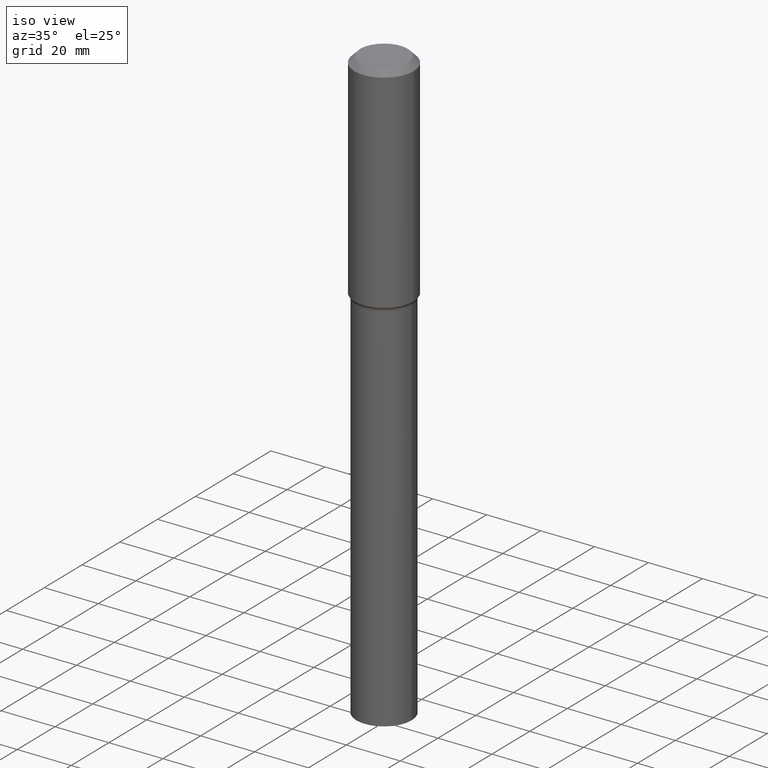
[diagram: clean part render]
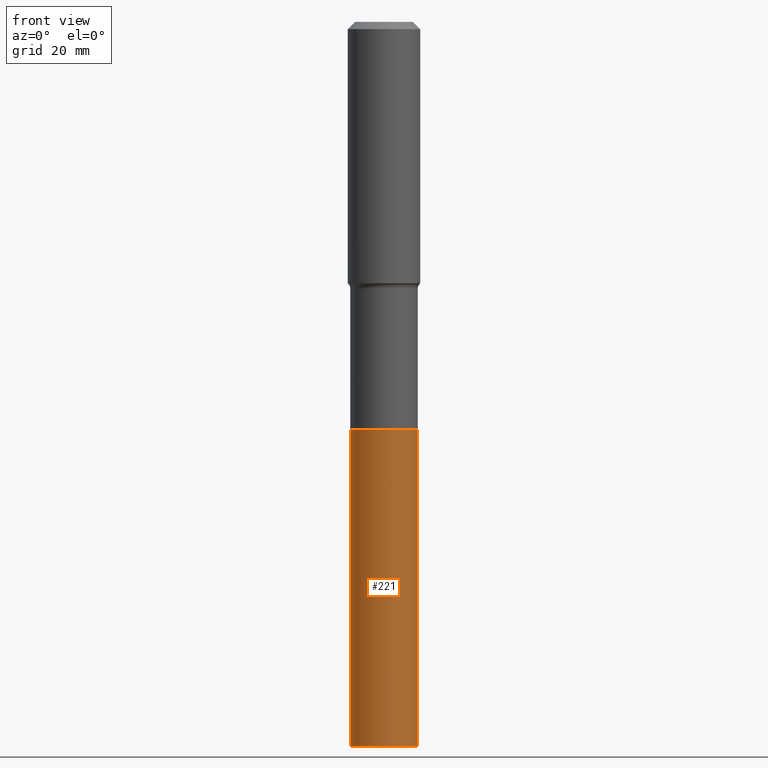
[diagram: tour spotlight — one face highlighted and labeled with its STEP entity id]
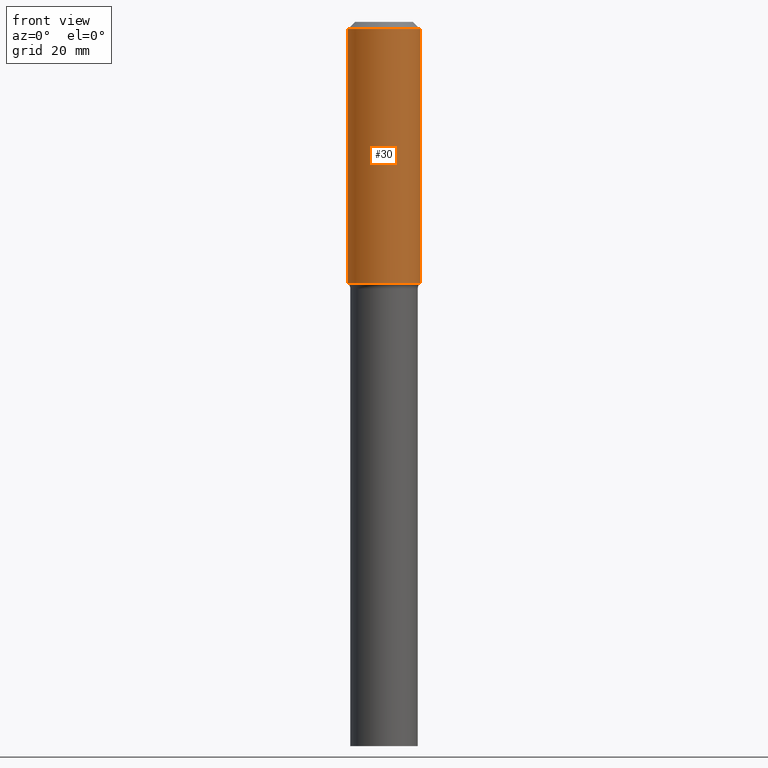
[diagram: tour spotlight — one face highlighted and labeled with its STEP entity id]
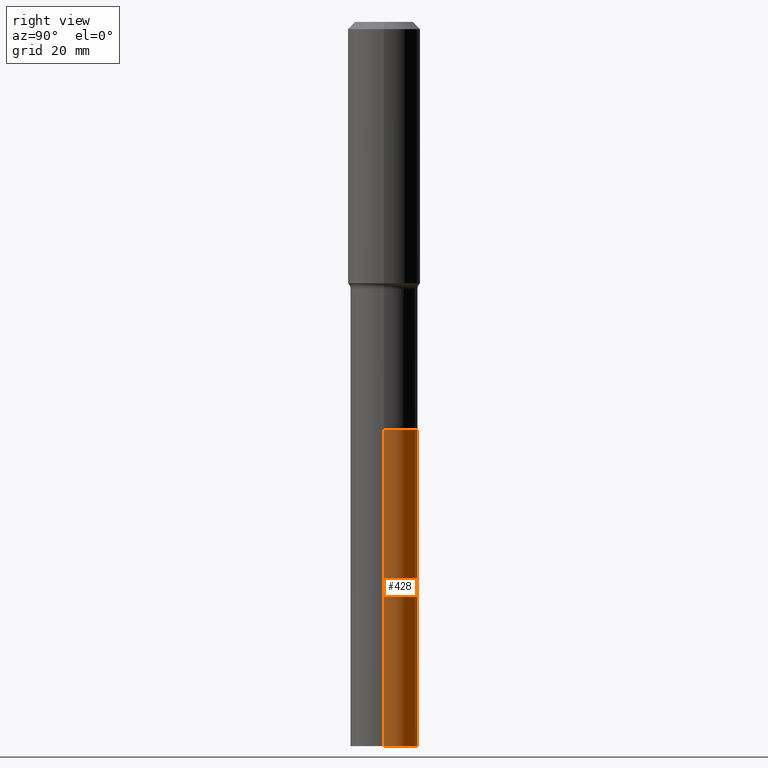
[diagram: tour spotlight — one face highlighted and labeled with its STEP entity id]
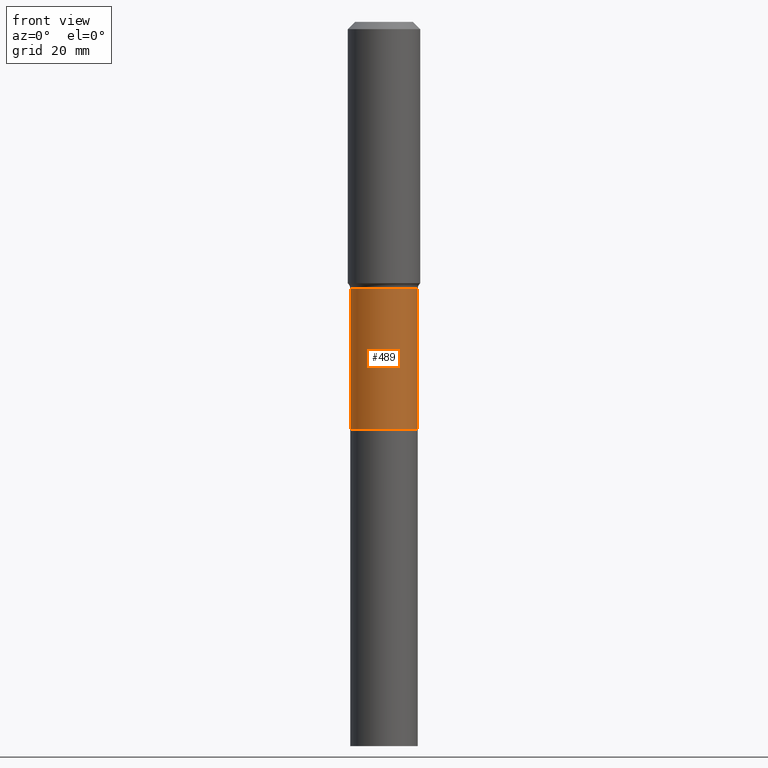
[diagram: tour spotlight — one face highlighted and labeled with its STEP entity id]
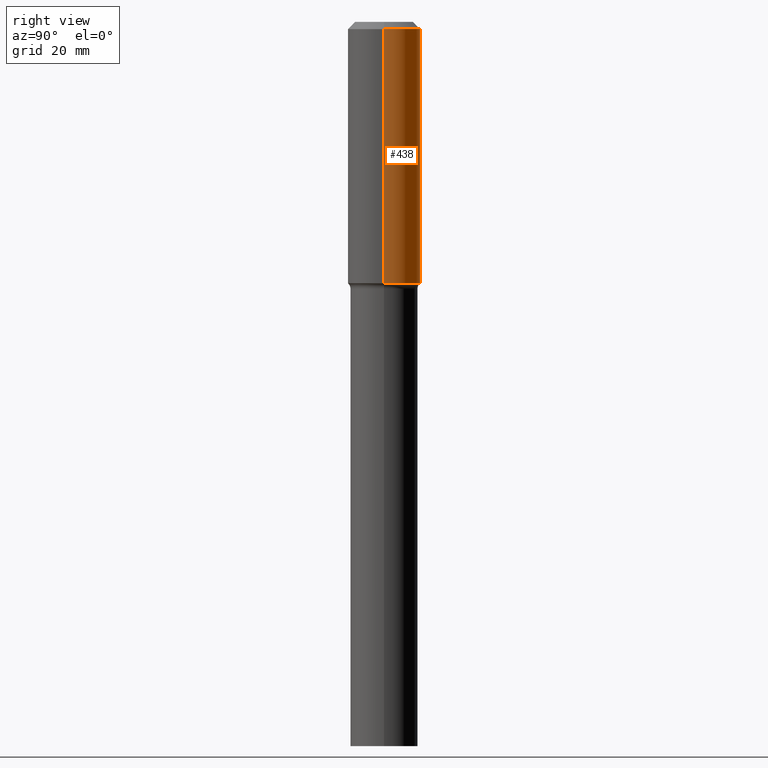
[diagram: tour spotlight — one face highlighted and labeled with its STEP entity id]
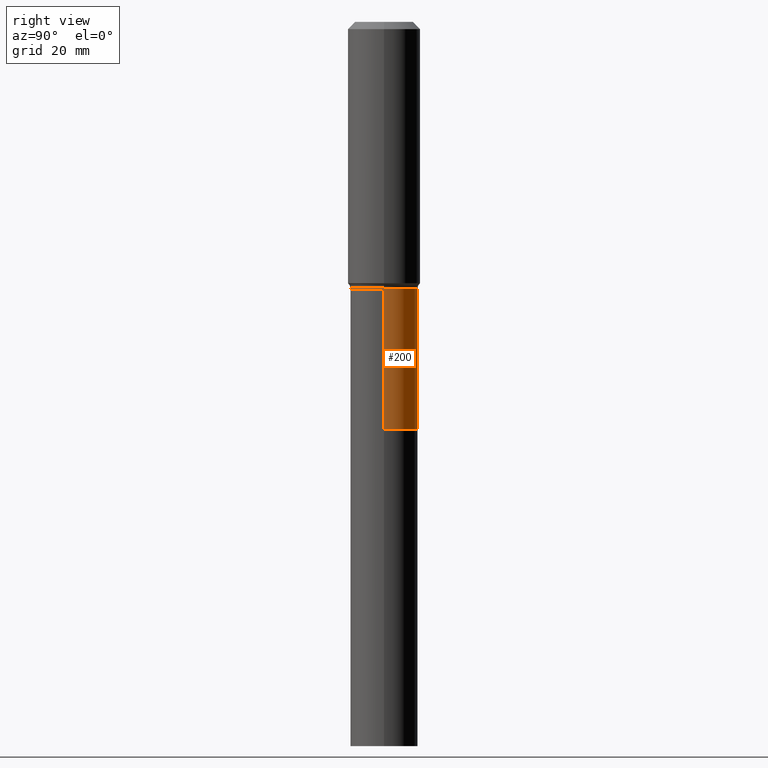
[diagram: tour spotlight — one face highlighted and labeled with its STEP entity id]
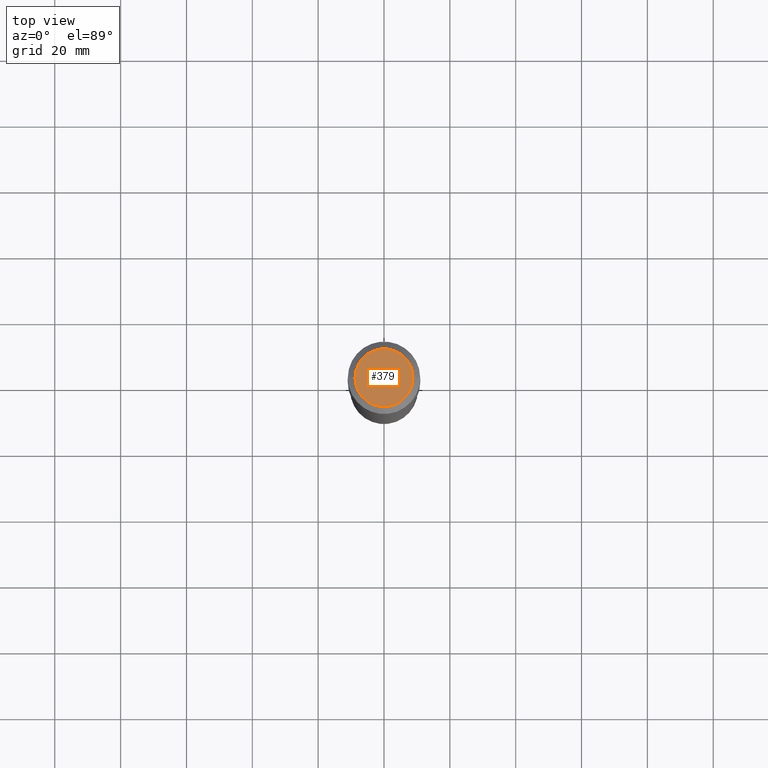
[diagram: tour spotlight — one face highlighted and labeled with its STEP entity id]
A machine part: a face-by-face anatomy tour. The part has 18 B-rep faces; the first image is the clean iso view, then the 7 largest visible faces are spotlighted one at a time (largest first), each with its STEP entity span.

Face 1 — front view, entity #221. In plain terms, the highlighted cylindrical surface (edge-blend (fillet) strip) has radius 10.2502 mm, axis along (-0, 0, 1).
Definition (entity closure, byte-faithful):
#12 = CARTESIAN_POINT ( 'NONE',  ( 0.4035499999999999643, -1.982986826395963764E-14, -4.872400000000000730 ) ) ;
#13 = CARTESIAN_POINT ( 'NONE',  ( -0.4035499999999999643, -2.075910986165779812E-14, -8.661400000000000432 ) ) ;
#23 = LINE ( 'NONE', #348, #120 ) ;
#49 = DIRECTION ( 'NONE',  ( -2.445468806185136597E-29, 3.491481338843145583E-15, 1.000000000000000000 ) ) ;
#96 = CARTESIAN_POINT ( 'NONE',  ( -0.4035499999999999643, -2.075910986165779812E-14, -4.872400000000000730 ) ) ;
#101 = DIRECTION ( 'NONE',  ( 1.000000000000000000, -6.982962677686270655E-15, 0.000000000000000000 ) ) ;
#102 = CARTESIAN_POINT ( 'NONE',  ( 0.4035499999999999643, -3.305909105683631707E-14, -8.661400000000000432 ) ) ;
#105 = DIRECTION ( 'NONE',  ( 1.000000000000000000, -6.982962677686270655E-15, 0.000000000000000000 ) ) ;
#110 = ORIENTED_EDGE ( 'NONE', *, *, #218, .T. ) ;
#120 = VECTOR ( 'NONE', #151, 39.37007874015748143 ) ;
#133 = DIRECTION ( 'NONE',  ( -2.445468806185136597E-29, 3.491481338843145583E-15, 1.000000000000000000 ) ) ;
#135 = CYLINDRICAL_SURFACE ( 'NONE', #327, 0.4035499999999999643 ) ;
#143 = DIRECTION ( 'NONE',  ( -2.445468806185136877E-29, 3.491481338843145188E-15, 1.000000000000000000 ) ) ;
#148 = CARTESIAN_POINT ( 'NONE',  ( 1.191530221125646148E-28, -1.701189367537934324E-14, -4.872400000000000730 ) ) ;
#151 = DIRECTION ( 'NONE',  ( -2.445468806185136877E-29, 3.491481338843145188E-15, 1.000000000000000000 ) ) ;
#158 = EDGE_CURVE ( 'NONE', #198, #279, #331, .T. ) ;
#170 = AXIS2_PLACEMENT_3D ( 'NONE', #410, #49, #101 ) ;
#176 = CIRCLE ( 'NONE', #170, 0.4035499999999999643 ) ;
#178 = FACE_OUTER_BOUND ( 'NONE', #343, .T. ) ;
#198 = VERTEX_POINT ( 'NONE', #102 ) ;
#206 = ORIENTED_EDGE ( 'NONE', *, *, #287, .F. ) ;
#215 = ORIENTED_EDGE ( 'NONE', *, *, #158, .T. ) ;
#218 = EDGE_CURVE ( 'NONE', #451, #198, #426, .T. ) ;
#221 = ADVANCED_FACE ( 'NONE', ( #178 ), #135, .T. ) ;
#268 = DIRECTION ( 'NONE',  ( 1.000000000000000000, -6.982962677686270655E-15, 0.000000000000000000 ) ) ;
#279 = VERTEX_POINT ( 'NONE', #361 ) ;
#283 = VECTOR ( 'NONE', #143, 39.37007874015748143 ) ;
#287 = EDGE_CURVE ( 'NONE', #451, #482, #23, .T. ) ;
#306 = ORIENTED_EDGE ( 'NONE', *, *, #457, .F. ) ;
#327 = AXIS2_PLACEMENT_3D ( 'NONE', #148, #133, #268 ) ;
#331 = LINE ( 'NONE', #12, #283 ) ;
#343 = EDGE_LOOP ( 'NONE', ( #206, #110, #215, #306 ) ) ;
#348 = CARTESIAN_POINT ( 'NONE',  ( -0.4035499999999999643, -1.414449846521945998E-14, -4.872400000000000730 ) ) ;
#361 = CARTESIAN_POINT ( 'NONE',  ( 0.4035499999999999643, -1.982986826395963764E-14, -4.872400000000000730 ) ) ;
#410 = CARTESIAN_POINT ( 'NONE',  ( 1.191530221125646148E-28, -1.701189367537934324E-14, -4.872400000000000730 ) ) ;
#415 = CARTESIAN_POINT ( 'NONE',  ( 2.118118351789194654E-28, -3.024111646825602582E-14, -8.661400000000000432 ) ) ;
#426 = CIRCLE ( 'NONE', #491, 0.4035499999999999643 ) ;
#451 = VERTEX_POINT ( 'NONE', #13 ) ;
#457 = EDGE_CURVE ( 'NONE', #482, #279, #176, .T. ) ;
#465 = DIRECTION ( 'NONE',  ( -2.445468806185136597E-29, 3.491481338843145583E-15, 1.000000000000000000 ) ) ;
#482 = VERTEX_POINT ( 'NONE', #96 ) ;
#491 = AXIS2_PLACEMENT_3D ( 'NONE', #415, #465, #105 ) ;

Face 2 — front view, entity #30. In plain terms, the highlighted cylindrical surface (edge-blend (fillet) strip) has radius 10.9995 mm, axis along (-0, 0, 1).
Definition (entity closure, byte-faithful):
#30 = ADVANCED_FACE ( 'NONE', ( #144 ), #136, .T. ) ;
#34 = VERTEX_POINT ( 'NONE', #230 ) ;
#35 = DIRECTION ( 'NONE',  ( -2.445468806185136877E-29, 3.491481338843145188E-15, 1.000000000000000000 ) ) ;
#45 = ORIENTED_EDGE ( 'NONE', *, *, #274, .F. ) ;
#57 = DIRECTION ( 'NONE',  ( -2.445468806185136597E-29, 3.491481338843145583E-15, 1.000000000000000000 ) ) ;
#69 = CARTESIAN_POINT ( 'NONE',  ( 0.000000000000000000, 0.000000000000000000, 0.000000000000000000 ) ) ;
#87 = CIRCLE ( 'NONE', #304, 0.4330500000000000460 ) ;
#130 = EDGE_CURVE ( 'NONE', #34, #282, #87, .T. ) ;
#134 = DIRECTION ( 'NONE',  ( -2.445468806185136877E-29, 3.491481338843145188E-15, 1.000000000000000000 ) ) ;
#136 = CYLINDRICAL_SURFACE ( 'NONE', #204, 0.4330500000000001570 ) ;
#142 = CARTESIAN_POINT ( 'NONE',  ( 0.4330500000000003791, -1.393922350118300844E-14, -3.126252285005076015 ) ) ;
#144 = FACE_OUTER_BOUND ( 'NONE', #272, .T. ) ;
#190 = CARTESIAN_POINT ( 'NONE',  ( -0.4330500000000001570, 3.077005317209114971E-15, -2.130144840834887965E-29 ) ) ;
#193 = CIRCLE ( 'NONE', #244, 0.4330500000000003791 ) ;
#204 = AXIS2_PLACEMENT_3D ( 'NONE', #69, #57, #466 ) ;
#217 = VECTOR ( 'NONE', #134, 39.37007874015748143 ) ;
#220 = CARTESIAN_POINT ( 'NONE',  ( 7.645152443244918339E-29, -1.091525151361096715E-14, -3.126252285005076015 ) ) ;
#229 = LINE ( 'NONE', #190, #486 ) ;
#230 = CARTESIAN_POINT ( 'NONE',  ( -0.4330500000000000460, -2.531819038974971065E-15, -0.08661000000000053378 ) ) ;
#244 = AXIS2_PLACEMENT_3D ( 'NONE', #220, #460, #425 ) ;
#249 = EDGE_CURVE ( 'NONE', #312, #413, #193, .T. ) ;
#262 = CARTESIAN_POINT ( 'NONE',  ( 2.118020533036960046E-30, -3.023971987572066927E-16, -0.08661000000000053378 ) ) ;
#272 = EDGE_LOOP ( 'NONE', ( #45, #392, #406, #397 ) ) ;
#274 = EDGE_CURVE ( 'NONE', #312, #34, #229, .T. ) ;
#277 = CARTESIAN_POINT ( 'NONE',  ( -0.4330500000000003791, -7.838246196401849028E-15, -3.126252285005076015 ) ) ;
#282 = VERTEX_POINT ( 'NONE', #311 ) ;
#304 = AXIS2_PLACEMENT_3D ( 'NONE', #262, #502, #494 ) ;
#311 = CARTESIAN_POINT ( 'NONE',  ( 0.4330500000000000460, -3.326369186329244629E-15, -0.08661000000000053378 ) ) ;
#312 = VERTEX_POINT ( 'NONE', #277 ) ;
#381 = CARTESIAN_POINT ( 'NONE',  ( 0.4330500000000001570, -3.023971987572038922E-15, 2.111628352758430875E-29 ) ) ;
#392 = ORIENTED_EDGE ( 'NONE', *, *, #249, .T. ) ;
#397 = ORIENTED_EDGE ( 'NONE', *, *, #130, .F. ) ;
#406 = ORIENTED_EDGE ( 'NONE', *, *, #476, .T. ) ;
#413 = VERTEX_POINT ( 'NONE', #142 ) ;
#425 = DIRECTION ( 'NONE',  ( 1.000000000000000000, -6.982962677686265133E-15, 0.000000000000000000 ) ) ;
#460 = DIRECTION ( 'NONE',  ( -2.445468806185136597E-29, 3.491481338843145583E-15, 1.000000000000000000 ) ) ;
#466 = DIRECTION ( 'NONE',  ( 1.000000000000000000, -6.982962677686266711E-15, 4.876176775795935793E-29 ) ) ;
#476 = EDGE_CURVE ( 'NONE', #413, #282, #495, .T. ) ;
#486 = VECTOR ( 'NONE', #35, 39.37007874015748143 ) ;
#494 = DIRECTION ( 'NONE',  ( 1.000000000000000000, -6.982962677686266711E-15, 0.000000000000000000 ) ) ;
#495 = LINE ( 'NONE', #381, #217 ) ;
#502 = DIRECTION ( 'NONE',  ( -2.445468806185136597E-29, 3.491481338843145583E-15, 1.000000000000000000 ) ) ;

Face 3 — right view, entity #428. In plain terms, the highlighted cylindrical surface (edge-blend (fillet) strip) has radius 10.2502 mm, axis along (-0, 0, 1).
Definition (entity closure, byte-faithful):
#12 = CARTESIAN_POINT ( 'NONE',  ( 0.4035499999999999643, -1.982986826395963764E-14, -4.872400000000000730 ) ) ;
#13 = CARTESIAN_POINT ( 'NONE',  ( -0.4035499999999999643, -2.075910986165779812E-14, -8.661400000000000432 ) ) ;
#23 = LINE ( 'NONE', #348, #120 ) ;
#27 = CIRCLE ( 'NONE', #128, 0.4035499999999999643 ) ;
#41 = ORIENTED_EDGE ( 'NONE', *, *, #287, .T. ) ;
#77 = DIRECTION ( 'NONE',  ( 1.000000000000000000, -6.982962677686270655E-15, 0.000000000000000000 ) ) ;
#82 = ORIENTED_EDGE ( 'NONE', *, *, #292, .F. ) ;
#96 = CARTESIAN_POINT ( 'NONE',  ( -0.4035499999999999643, -2.075910986165779812E-14, -4.872400000000000730 ) ) ;
#97 = CIRCLE ( 'NONE', #298, 0.4035499999999999643 ) ;
#102 = CARTESIAN_POINT ( 'NONE',  ( 0.4035499999999999643, -3.305909105683631707E-14, -8.661400000000000432 ) ) ;
#120 = VECTOR ( 'NONE', #151, 39.37007874015748143 ) ;
#128 = AXIS2_PLACEMENT_3D ( 'NONE', #473, #508, #77 ) ;
#132 = FACE_OUTER_BOUND ( 'NONE', #500, .T. ) ;
#143 = DIRECTION ( 'NONE',  ( -2.445468806185136877E-29, 3.491481338843145188E-15, 1.000000000000000000 ) ) ;
#151 = DIRECTION ( 'NONE',  ( -2.445468806185136877E-29, 3.491481338843145188E-15, 1.000000000000000000 ) ) ;
#158 = EDGE_CURVE ( 'NONE', #198, #279, #331, .T. ) ;
#198 = VERTEX_POINT ( 'NONE', #102 ) ;
#222 = DIRECTION ( 'NONE',  ( 1.000000000000000000, -6.982962677686270655E-15, 0.000000000000000000 ) ) ;
#239 = ORIENTED_EDGE ( 'NONE', *, *, #158, .F. ) ;
#257 = CARTESIAN_POINT ( 'NONE',  ( 1.191530221125646148E-28, -1.701189367537934324E-14, -4.872400000000000730 ) ) ;
#264 = AXIS2_PLACEMENT_3D ( 'NONE', #257, #291, #377 ) ;
#279 = VERTEX_POINT ( 'NONE', #361 ) ;
#283 = VECTOR ( 'NONE', #143, 39.37007874015748143 ) ;
#287 = EDGE_CURVE ( 'NONE', #451, #482, #23, .T. ) ;
#291 = DIRECTION ( 'NONE',  ( -2.445468806185136597E-29, 3.491481338843145583E-15, 1.000000000000000000 ) ) ;
#292 = EDGE_CURVE ( 'NONE', #279, #482, #27, .T. ) ;
#295 = CARTESIAN_POINT ( 'NONE',  ( 2.118118351789194654E-28, -3.024111646825602582E-14, -8.661400000000000432 ) ) ;
#298 = AXIS2_PLACEMENT_3D ( 'NONE', #295, #340, #222 ) ;
#319 = ORIENTED_EDGE ( 'NONE', *, *, #369, .T. ) ;
#331 = LINE ( 'NONE', #12, #283 ) ;
#340 = DIRECTION ( 'NONE',  ( -2.445468806185136597E-29, 3.491481338843145583E-15, 1.000000000000000000 ) ) ;
#348 = CARTESIAN_POINT ( 'NONE',  ( -0.4035499999999999643, -1.414449846521945998E-14, -4.872400000000000730 ) ) ;
#361 = CARTESIAN_POINT ( 'NONE',  ( 0.4035499999999999643, -1.982986826395963764E-14, -4.872400000000000730 ) ) ;
#369 = EDGE_CURVE ( 'NONE', #198, #451, #97, .T. ) ;
#377 = DIRECTION ( 'NONE',  ( 1.000000000000000000, -6.982962677686270655E-15, 0.000000000000000000 ) ) ;
#385 = CYLINDRICAL_SURFACE ( 'NONE', #264, 0.4035499999999999643 ) ;
#428 = ADVANCED_FACE ( 'NONE', ( #132 ), #385, .T. ) ;
#451 = VERTEX_POINT ( 'NONE', #13 ) ;
#473 = CARTESIAN_POINT ( 'NONE',  ( 1.191530221125646148E-28, -1.701189367537934324E-14, -4.872400000000000730 ) ) ;
#482 = VERTEX_POINT ( 'NONE', #96 ) ;
#500 = EDGE_LOOP ( 'NONE', ( #319, #41, #82, #239 ) ) ;
#508 = DIRECTION ( 'NONE',  ( -2.445468806185136597E-29, 3.491481338843145583E-15, 1.000000000000000000 ) ) ;

Face 4 — front view, entity #489. In plain terms, the highlighted cylindrical surface (edge-blend (fillet) strip) has radius 10.2502 mm, axis along (-0, 0, 1).
Definition (entity closure, byte-faithful):
#21 = ORIENTED_EDGE ( 'NONE', *, *, #512, .T. ) ;
#32 = ORIENTED_EDGE ( 'NONE', *, *, #117, .F. ) ;
#109 = DIRECTION ( 'NONE',  ( -2.445468806185136597E-29, 3.491481338843145583E-15, 1.000000000000000000 ) ) ;
#117 = EDGE_CURVE ( 'NONE', #362, #510, #383, .T. ) ;
#127 = AXIS2_PLACEMENT_3D ( 'NONE', #376, #418, #302 ) ;
#140 = CARTESIAN_POINT ( 'NONE',  ( 7.799578210446876445E-29, -1.113573058210633188E-14, -3.189400000000000901 ) ) ;
#145 = CARTESIAN_POINT ( 'NONE',  ( 0.000000000000000000, 0.000000000000000000, 0.000000000000000000 ) ) ;
#150 = AXIS2_PLACEMENT_3D ( 'NONE', #140, #386, #422 ) ;
#164 = EDGE_LOOP ( 'NONE', ( #363, #167, #21, #32 ) ) ;
#167 = ORIENTED_EDGE ( 'NONE', *, *, #208, .T. ) ;
#174 = CARTESIAN_POINT ( 'NONE',  ( -0.4035499999999997978, -1.120554404824824237E-14, -3.189400000000000901 ) ) ;
#196 = DIRECTION ( 'NONE',  ( -2.445468806185136877E-29, 3.491481338843145188E-15, 1.000000000000000000 ) ) ;
#208 = EDGE_CURVE ( 'NONE', #286, #475, #359, .T. ) ;
#219 = CARTESIAN_POINT ( 'NONE',  ( 0.4035499999999999643, -1.982812252329021220E-14, -4.871900000000000119 ) ) ;
#228 = DIRECTION ( 'NONE',  ( -2.445468806185136877E-29, 3.491481338843145188E-15, 1.000000000000000000 ) ) ;
#240 = DIRECTION ( 'NONE',  ( 1.000000000000000000, -6.982962677686265922E-15, 4.876176775795935232E-29 ) ) ;
#271 = CARTESIAN_POINT ( 'NONE',  ( 0.4035499999999997978, -1.395370517068662471E-14, -3.189400000000000901 ) ) ;
#286 = VERTEX_POINT ( 'NONE', #389 ) ;
#302 = DIRECTION ( 'NONE',  ( 1.000000000000000000, -6.982962677686265922E-15, 0.000000000000000000 ) ) ;
#305 = FACE_OUTER_BOUND ( 'NONE', #164, .T. ) ;
#315 = AXIS2_PLACEMENT_3D ( 'NONE', #145, #109, #240 ) ;
#328 = VECTOR ( 'NONE', #228, 39.37007874015748143 ) ;
#344 = CARTESIAN_POINT ( 'NONE',  ( 0.4035499999999998533, -2.817974588580291640E-15, 1.967781137872449025E-29 ) ) ;
#349 = EDGE_CURVE ( 'NONE', #286, #362, #501, .T. ) ;
#359 = CIRCLE ( 'NONE', #127, 0.4035499999999999643 ) ;
#360 = VECTOR ( 'NONE', #196, 39.37007874015748143 ) ;
#362 = VERTEX_POINT ( 'NONE', #174 ) ;
#363 = ORIENTED_EDGE ( 'NONE', *, *, #349, .F. ) ;
#370 = CARTESIAN_POINT ( 'NONE',  ( -0.4035499999999998533, 2.867395210159883258E-15, -1.985036255672366672E-29 ) ) ;
#376 = CARTESIAN_POINT ( 'NONE',  ( 1.191407947685336644E-28, -1.701014793470992095E-14, -4.871900000000000119 ) ) ;
#383 = CIRCLE ( 'NONE', #150, 0.4035499999999997978 ) ;
#386 = DIRECTION ( 'NONE',  ( -2.445468806185136597E-29, 3.491481338843145583E-15, 1.000000000000000000 ) ) ;
#389 = CARTESIAN_POINT ( 'NONE',  ( -0.4035500000000000753, -1.120554404824823921E-14, -4.871900000000000119 ) ) ;
#390 = LINE ( 'NONE', #344, #360 ) ;
#418 = DIRECTION ( 'NONE',  ( -2.445468806185136597E-29, 3.491481338843145583E-15, 1.000000000000000000 ) ) ;
#422 = DIRECTION ( 'NONE',  ( 1.000000000000000000, -6.982962677686269077E-15, 0.000000000000000000 ) ) ;
#475 = VERTEX_POINT ( 'NONE', #219 ) ;
#489 = ADVANCED_FACE ( 'NONE', ( #305 ), #511, .T. ) ;
#501 = LINE ( 'NONE', #370, #328 ) ;
#510 = VERTEX_POINT ( 'NONE', #271 ) ;
#511 = CYLINDRICAL_SURFACE ( 'NONE', #315, 0.4035499999999998533 ) ;
#512 = EDGE_CURVE ( 'NONE', #475, #510, #390, .T. ) ;

Face 5 — right view, entity #438. In plain terms, the highlighted cylindrical surface (edge-blend (fillet) strip) has radius 10.9995 mm, axis along (-0, 0, 1).
Definition (entity closure, byte-faithful):
#25 = EDGE_CURVE ( 'NONE', #413, #312, #186, .T. ) ;
#28 = AXIS2_PLACEMENT_3D ( 'NONE', #104, #497, #455 ) ;
#34 = VERTEX_POINT ( 'NONE', #230 ) ;
#35 = DIRECTION ( 'NONE',  ( -2.445468806185136877E-29, 3.491481338843145188E-15, 1.000000000000000000 ) ) ;
#54 = DIRECTION ( 'NONE',  ( 1.000000000000000000, -6.982962677686266711E-15, 0.000000000000000000 ) ) ;
#104 = CARTESIAN_POINT ( 'NONE',  ( 0.000000000000000000, 0.000000000000000000, 0.000000000000000000 ) ) ;
#108 = DIRECTION ( 'NONE',  ( -2.445468806185136597E-29, 3.491481338843145583E-15, 1.000000000000000000 ) ) ;
#134 = DIRECTION ( 'NONE',  ( -2.445468806185136877E-29, 3.491481338843145188E-15, 1.000000000000000000 ) ) ;
#137 = AXIS2_PLACEMENT_3D ( 'NONE', #210, #108, #419 ) ;
#142 = CARTESIAN_POINT ( 'NONE',  ( 0.4330500000000003791, -1.393922350118300844E-14, -3.126252285005076015 ) ) ;
#165 = ORIENTED_EDGE ( 'NONE', *, *, #468, .F. ) ;
#177 = FACE_OUTER_BOUND ( 'NONE', #513, .T. ) ;
#186 = CIRCLE ( 'NONE', #137, 0.4330500000000003791 ) ;
#190 = CARTESIAN_POINT ( 'NONE',  ( -0.4330500000000001570, 3.077005317209114971E-15, -2.130144840834887965E-29 ) ) ;
#210 = CARTESIAN_POINT ( 'NONE',  ( 7.645152443244918339E-29, -1.091525151361096715E-14, -3.126252285005076015 ) ) ;
#217 = VECTOR ( 'NONE', #134, 39.37007874015748143 ) ;
#229 = LINE ( 'NONE', #190, #486 ) ;
#230 = CARTESIAN_POINT ( 'NONE',  ( -0.4330500000000000460, -2.531819038974971065E-15, -0.08661000000000053378 ) ) ;
#235 = ORIENTED_EDGE ( 'NONE', *, *, #25, .T. ) ;
#242 = ORIENTED_EDGE ( 'NONE', *, *, #476, .F. ) ;
#267 = CARTESIAN_POINT ( 'NONE',  ( 2.118020533036960046E-30, -3.023971987572066927E-16, -0.08661000000000053378 ) ) ;
#274 = EDGE_CURVE ( 'NONE', #312, #34, #229, .T. ) ;
#277 = CARTESIAN_POINT ( 'NONE',  ( -0.4330500000000003791, -7.838246196401849028E-15, -3.126252285005076015 ) ) ;
#282 = VERTEX_POINT ( 'NONE', #311 ) ;
#293 = CYLINDRICAL_SURFACE ( 'NONE', #28, 0.4330500000000001570 ) ;
#311 = CARTESIAN_POINT ( 'NONE',  ( 0.4330500000000000460, -3.326369186329244629E-15, -0.08661000000000053378 ) ) ;
#312 = VERTEX_POINT ( 'NONE', #277 ) ;
#314 = AXIS2_PLACEMENT_3D ( 'NONE', #267, #421, #54 ) ;
#373 = CIRCLE ( 'NONE', #314, 0.4330500000000000460 ) ;
#381 = CARTESIAN_POINT ( 'NONE',  ( 0.4330500000000001570, -3.023971987572038922E-15, 2.111628352758430875E-29 ) ) ;
#413 = VERTEX_POINT ( 'NONE', #142 ) ;
#419 = DIRECTION ( 'NONE',  ( 1.000000000000000000, -6.982962677686265133E-15, 0.000000000000000000 ) ) ;
#421 = DIRECTION ( 'NONE',  ( -2.445468806185136597E-29, 3.491481338843145583E-15, 1.000000000000000000 ) ) ;
#438 = ADVANCED_FACE ( 'NONE', ( #177 ), #293, .T. ) ;
#455 = DIRECTION ( 'NONE',  ( 1.000000000000000000, -6.982962677686266711E-15, 4.876176775795935793E-29 ) ) ;
#468 = EDGE_CURVE ( 'NONE', #282, #34, #373, .T. ) ;
#476 = EDGE_CURVE ( 'NONE', #413, #282, #495, .T. ) ;
#486 = VECTOR ( 'NONE', #35, 39.37007874015748143 ) ;
#495 = LINE ( 'NONE', #381, #217 ) ;
#497 = DIRECTION ( 'NONE',  ( -2.445468806185136597E-29, 3.491481338843145583E-15, 1.000000000000000000 ) ) ;
#513 = EDGE_LOOP ( 'NONE', ( #235, #514, #165, #242 ) ) ;
#514 = ORIENTED_EDGE ( 'NONE', *, *, #274, .T. ) ;

Face 6 — right view, entity #200. In plain terms, the highlighted cylindrical surface (edge-blend (fillet) strip) has radius 10.2502 mm, axis along (-0, 0, 1).
Definition (entity closure, byte-faithful):
#1 = ORIENTED_EDGE ( 'NONE', *, *, #408, .T. ) ;
#9 = CARTESIAN_POINT ( 'NONE',  ( 1.191407947685336644E-28, -1.701014793470992095E-14, -4.871900000000000119 ) ) ;
#11 = DIRECTION ( 'NONE',  ( 1.000000000000000000, -6.982962677686265922E-15, 4.876176775795935232E-29 ) ) ;
#37 = ORIENTED_EDGE ( 'NONE', *, *, #512, .F. ) ;
#46 = DIRECTION ( 'NONE',  ( 1.000000000000000000, -6.982962677686269077E-15, 0.000000000000000000 ) ) ;
#79 = EDGE_CURVE ( 'NONE', #510, #362, #114, .T. ) ;
#89 = AXIS2_PLACEMENT_3D ( 'NONE', #9, #91, #464 ) ;
#90 = ORIENTED_EDGE ( 'NONE', *, *, #79, .F. ) ;
#91 = DIRECTION ( 'NONE',  ( -2.445468806185136597E-29, 3.491481338843145583E-15, 1.000000000000000000 ) ) ;
#106 = AXIS2_PLACEMENT_3D ( 'NONE', #387, #474, #46 ) ;
#113 = ORIENTED_EDGE ( 'NONE', *, *, #349, .T. ) ;
#114 = CIRCLE ( 'NONE', #106, 0.4035499999999997978 ) ;
#174 = CARTESIAN_POINT ( 'NONE',  ( -0.4035499999999997978, -1.120554404824824237E-14, -3.189400000000000901 ) ) ;
#181 = CARTESIAN_POINT ( 'NONE',  ( 0.000000000000000000, 0.000000000000000000, 0.000000000000000000 ) ) ;
#196 = DIRECTION ( 'NONE',  ( -2.445468806185136877E-29, 3.491481338843145188E-15, 1.000000000000000000 ) ) ;
#200 = ADVANCED_FACE ( 'NONE', ( #223 ), #214, .T. ) ;
#214 = CYLINDRICAL_SURFACE ( 'NONE', #393, 0.4035499999999998533 ) ;
#219 = CARTESIAN_POINT ( 'NONE',  ( 0.4035499999999999643, -1.982812252329021220E-14, -4.871900000000000119 ) ) ;
#223 = FACE_OUTER_BOUND ( 'NONE', #316, .T. ) ;
#228 = DIRECTION ( 'NONE',  ( -2.445468806185136877E-29, 3.491481338843145188E-15, 1.000000000000000000 ) ) ;
#271 = CARTESIAN_POINT ( 'NONE',  ( 0.4035499999999997978, -1.395370517068662471E-14, -3.189400000000000901 ) ) ;
#286 = VERTEX_POINT ( 'NONE', #389 ) ;
#316 = EDGE_LOOP ( 'NONE', ( #1, #113, #90, #37 ) ) ;
#328 = VECTOR ( 'NONE', #228, 39.37007874015748143 ) ;
#334 = DIRECTION ( 'NONE',  ( -2.445468806185136597E-29, 3.491481338843145583E-15, 1.000000000000000000 ) ) ;
#344 = CARTESIAN_POINT ( 'NONE',  ( 0.4035499999999998533, -2.817974588580291640E-15, 1.967781137872449025E-29 ) ) ;
#349 = EDGE_CURVE ( 'NONE', #286, #362, #501, .T. ) ;
#360 = VECTOR ( 'NONE', #196, 39.37007874015748143 ) ;
#362 = VERTEX_POINT ( 'NONE', #174 ) ;
#370 = CARTESIAN_POINT ( 'NONE',  ( -0.4035499999999998533, 2.867395210159883258E-15, -1.985036255672366672E-29 ) ) ;
#387 = CARTESIAN_POINT ( 'NONE',  ( 7.799578210446876445E-29, -1.113573058210633188E-14, -3.189400000000000901 ) ) ;
#389 = CARTESIAN_POINT ( 'NONE',  ( -0.4035500000000000753, -1.120554404824823921E-14, -4.871900000000000119 ) ) ;
#390 = LINE ( 'NONE', #344, #360 ) ;
#393 = AXIS2_PLACEMENT_3D ( 'NONE', #181, #334, #11 ) ;
#408 = EDGE_CURVE ( 'NONE', #475, #286, #445, .T. ) ;
#445 = CIRCLE ( 'NONE', #89, 0.4035499999999999643 ) ;
#464 = DIRECTION ( 'NONE',  ( 1.000000000000000000, -6.982962677686265922E-15, 0.000000000000000000 ) ) ;
#474 = DIRECTION ( 'NONE',  ( -2.445468806185136597E-29, 3.491481338843145583E-15, 1.000000000000000000 ) ) ;
#475 = VERTEX_POINT ( 'NONE', #219 ) ;
#501 = LINE ( 'NONE', #370, #328 ) ;
#510 = VERTEX_POINT ( 'NONE', #271 ) ;
#512 = EDGE_CURVE ( 'NONE', #475, #510, #390, .T. ) ;

Face 7 — top view, entity #379. In plain terms, the highlighted planar face has unit normal (0, -0, -1).
Definition (entity closure, byte-faithful):
#56 = CARTESIAN_POINT ( 'NONE',  ( -0.3464400000000000257, 2.570376189436231151E-15, 3.855188123698415642E-18 ) ) ;
#65 = CARTESIAN_POINT ( 'NONE',  ( 0.3464400000000000257, -2.825043391520069124E-15, 3.855188123734197880E-18 ) ) ;
#68 = DIRECTION ( 'NONE',  ( 1.000000000000000000, -6.982962677686265922E-15, 4.876202609618050646E-29 ) ) ;
#78 = VERTEX_POINT ( 'NONE', #65 ) ;
#81 = CIRCLE ( 'NONE', #443, 0.3464400000000000257 ) ;
#160 = DIRECTION ( 'NONE',  ( -2.445468806185136597E-29, 3.491481338843145583E-15, 1.000000000000000000 ) ) ;
#194 = AXIS2_PLACEMENT_3D ( 'NONE', #225, #330, #458 ) ;
#225 = CARTESIAN_POINT ( 'NONE',  ( -4.713871149261273121E-47, 6.730158695841826722E-33, 1.927594061857931128E-18 ) ) ;
#231 = VERTEX_POINT ( 'NONE', #56 ) ;
#250 = EDGE_CURVE ( 'NONE', #231, #78, #81, .T. ) ;
#255 = DIRECTION ( 'NONE',  ( 1.000000000000000000, -6.982962677686265922E-15, 4.876202609618050646E-29 ) ) ;
#266 = CARTESIAN_POINT ( 'NONE',  ( -9.427742298522546243E-47, 1.346031739168365344E-32, 3.855188123715862256E-18 ) ) ;
#278 = ORIENTED_EDGE ( 'NONE', *, *, #326, .T. ) ;
#326 = EDGE_CURVE ( 'NONE', #78, #231, #367, .T. ) ;
#330 = DIRECTION ( 'NONE',  ( 2.438088387897960049E-29, -3.491481338843145188E-15, -1.000000000000000000 ) ) ;
#356 = CARTESIAN_POINT ( 'NONE',  ( -9.427742298522546243E-47, 1.346031739168365344E-32, 3.855188123715862256E-18 ) ) ;
#367 = CIRCLE ( 'NONE', #384, 0.3464400000000000257 ) ;
#379 = ADVANCED_FACE ( 'NONE', ( #452 ), #417, .F. ) ;
#384 = AXIS2_PLACEMENT_3D ( 'NONE', #356, #160, #255 ) ;
#417 = PLANE ( 'NONE',  #194 ) ;
#443 = AXIS2_PLACEMENT_3D ( 'NONE', #266, #463, #68 ) ;
#452 = FACE_OUTER_BOUND ( 'NONE', #471, .T. ) ;
#458 = DIRECTION ( 'NONE',  ( -1.000000000000000000, 6.982962677686265922E-15, -4.876176775795935793E-29 ) ) ;
#463 = DIRECTION ( 'NONE',  ( -2.445468806185136597E-29, 3.491481338843145583E-15, 1.000000000000000000 ) ) ;
#471 = EDGE_LOOP ( 'NONE', ( #479, #278 ) ) ;
#479 = ORIENTED_EDGE ( 'NONE', *, *, #250, .T. ) ;